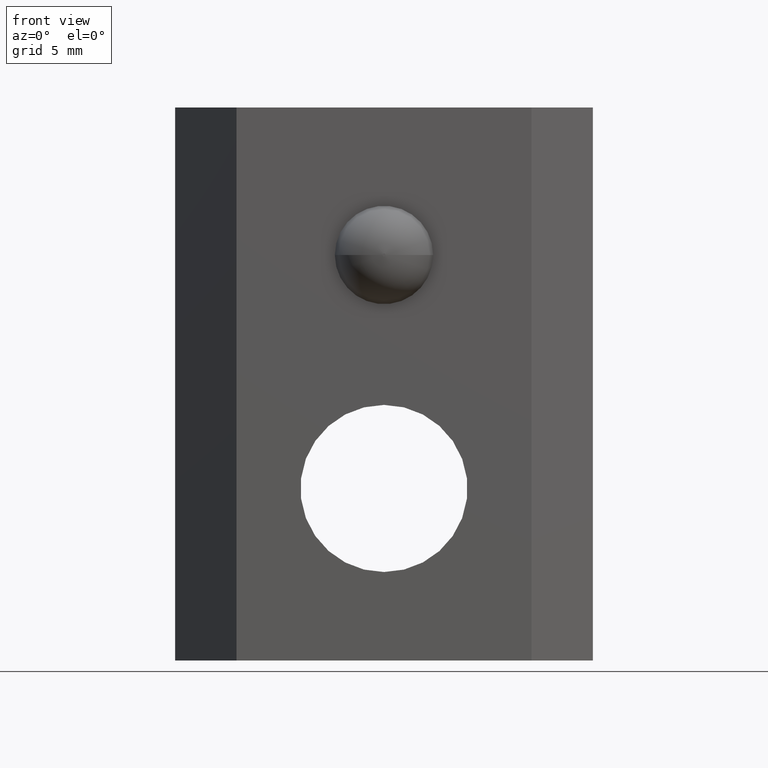
[diagram: clean part render]
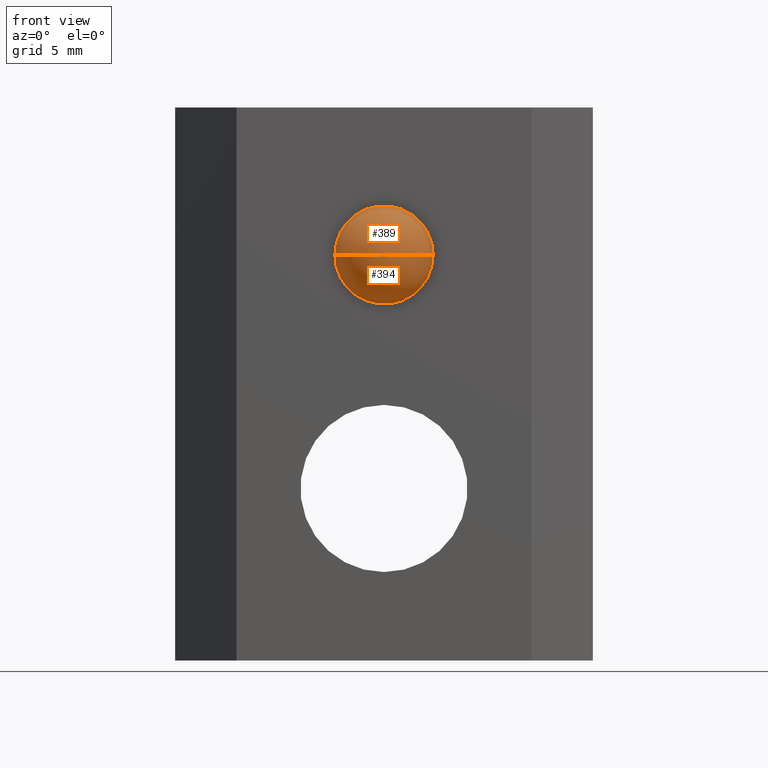
[diagram: same view with one multi-face feature highlighted, each face labeled with its STEP entity id]
A machine part, front view. The highlighted faces form ONE feature: a constant-radius fillet chain: 2 tangent blend faces with common blend radius 2 mm. The faces share edges in the B-rep.
Their STEP definitions:
[1] entity #389 (Torus):
#5 = DIRECTION ( 'NONE',  ( 1.000000000000000000, 0.0000000000000000000, 0.0000000000000000000 ) ) ;
#26 = CARTESIAN_POINT ( 'NONE',  ( 0.06350832689629230800, 0.5000000000000000000, 16.50000000000000000 ) ) ;
#29 = CARTESIAN_POINT ( 'NONE',  ( 5.845100670608983900E-017, 0.5000000000000000000, 16.50000000000000000 ) ) ;
#31 = DIRECTION ( 'NONE',  ( -1.000000000000000000, 1.169020134121797000E-016, 0.0000000000000000000 ) ) ;
#38 = DIRECTION ( 'NONE',  ( 1.169020134121797000E-016, 1.000000000000000000, -0.0000000000000000000 ) ) ;
#50 = DIRECTION ( 'NONE',  ( -1.000000000000000000, 1.169020134121796800E-016, 0.0000000000000000000 ) ) ;
#53 = DIRECTION ( 'NONE',  ( -1.224646799147353200E-016, 1.431636765391068300E-032, 1.000000000000000000 ) ) ;
#54 = CARTESIAN_POINT ( 'NONE',  ( -2.648153673532449300E-031, -2.168404344971008900E-015, 16.50000000000000000 ) ) ;
#60 = CARTESIAN_POINT ( 'NONE',  ( -0.06350832689629219700, 0.5000000000000000000, 16.50000000000000000 ) ) ;
#73 = DIRECTION ( 'NONE',  ( -1.169020134121797000E-016, -1.000000000000000000, 0.0000000000000000000 ) ) ;
#84 = DIRECTION ( 'NONE',  ( -0.0000000000000000000, 0.0000000000000000000, -1.000000000000000000 ) ) ;
#89 = DIRECTION ( 'NONE',  ( 1.000000000000000000, 0.0000000000000000000, 0.0000000000000000000 ) ) ;
#93 = DIRECTION ( 'NONE',  ( -1.000000000000000000, 0.0000000000000000000, 0.0000000000000000000 ) ) ;
#97 = CARTESIAN_POINT ( 'NONE',  ( -1.753530201182695600E-016, -1.500000000000000000, 16.50000000000000000 ) ) ;
#135 = DIRECTION ( 'NONE',  ( -1.169020134121797000E-016, -1.000000000000000000, 0.0000000000000000000 ) ) ;
#138 = CIRCLE ( 'NONE', #301, 2.000000000000000000 ) ;
#142 = CIRCLE ( 'NONE', #283, 2.000000000000000400 ) ;
#148 = CIRCLE ( 'NONE', #286, 0.06350832689629225300 ) ;
#161 = CIRCLE ( 'NONE', #287, 2.000000000000000000 ) ;
#258 = AXIS2_PLACEMENT_3D ( 'NONE', #29, #38, #31 ) ;
#275 = EDGE_CURVE ( 'NONE', #509, #489, #138, .T. ) ;
#279 = EDGE_CURVE ( 'NONE', #489, #501, #142, .T. ) ;
#283 = AXIS2_PLACEMENT_3D ( 'NONE', #54, #73, #50 ) ;
#286 = AXIS2_PLACEMENT_3D ( 'NONE', #97, #135, #89 ) ;
#287 = AXIS2_PLACEMENT_3D ( 'NONE', #60, #84, #93 ) ;
#293 = EDGE_CURVE ( 'NONE', #509, #512, #148, .T. ) ;
#301 = AXIS2_PLACEMENT_3D ( 'NONE', #26, #53, #5 ) ;
#307 = EDGE_CURVE ( 'NONE', #512, #501, #161, .T. ) ;
#339 = ORIENTED_EDGE ( 'NONE', *, *, #293, .F. ) ;
#341 = ORIENTED_EDGE ( 'NONE', *, *, #275, .T. ) ;
#346 = ORIENTED_EDGE ( 'NONE', *, *, #279, .T. ) ;
#352 = ORIENTED_EDGE ( 'NONE', *, *, #307, .F. ) ;
#373 = EDGE_LOOP ( 'NONE', ( #339, #341, #346, #352 ) ) ;
#389 = ADVANCED_FACE ( 'NONE', ( #529 ), #531, .T. ) ;
#433 = CARTESIAN_POINT ( 'NONE',  ( 2.000000000000000400, -2.447936684256014100E-015, 16.50000000000000000 ) ) ;
#446 = CARTESIAN_POINT ( 'NONE',  ( -2.000000000000000000, -1.943082114310278800E-015, 16.50000000000000000 ) ) ;
#453 = CARTESIAN_POINT ( 'NONE',  ( -0.06350832689629243300, -1.500000000000000000, 16.50000000000000000 ) ) ;
#465 = CARTESIAN_POINT ( 'NONE',  ( 0.06350832689629207200, -1.500000000000000000, 16.50000000000000000 ) ) ;
#489 = VERTEX_POINT ( 'NONE', #433 ) ;
#501 = VERTEX_POINT ( 'NONE', #446 ) ;
#509 = VERTEX_POINT ( 'NONE', #465 ) ;
#512 = VERTEX_POINT ( 'NONE', #453 ) ;
#529 = FACE_OUTER_BOUND ( 'NONE', #373, .T. ) ;
#531 = TOROIDAL_SURFACE ( 'NONE', #258, 0.06350832689629225300, 2.000000000000000000 ) ;
[2] entity #394 (Torus):
#3 = DIRECTION ( 'NONE',  ( -1.169020134121797000E-016, -1.000000000000000000, 0.0000000000000000000 ) ) ;
#5 = DIRECTION ( 'NONE',  ( 1.000000000000000000, 0.0000000000000000000, 0.0000000000000000000 ) ) ;
#10 = DIRECTION ( 'NONE',  ( -1.169020134121797000E-016, -1.000000000000000000, 0.0000000000000000000 ) ) ;
#26 = CARTESIAN_POINT ( 'NONE',  ( 0.06350832689629230800, 0.5000000000000000000, 16.50000000000000000 ) ) ;
#33 = DIRECTION ( 'NONE',  ( 1.169020134121797000E-016, 1.000000000000000000, -0.0000000000000000000 ) ) ;
#40 = CARTESIAN_POINT ( 'NONE',  ( 5.845100670608983900E-017, 0.5000000000000000000, 16.50000000000000000 ) ) ;
#51 = DIRECTION ( 'NONE',  ( 1.000000000000000000, 0.0000000000000000000, 0.0000000000000000000 ) ) ;
#53 = DIRECTION ( 'NONE',  ( -1.224646799147353200E-016, 1.431636765391068300E-032, 1.000000000000000000 ) ) ;
#58 = CARTESIAN_POINT ( 'NONE',  ( -1.753530201182695600E-016, -1.500000000000000000, 16.50000000000000000 ) ) ;
#60 = CARTESIAN_POINT ( 'NONE',  ( -0.06350832689629219700, 0.5000000000000000000, 16.50000000000000000 ) ) ;
#62 = DIRECTION ( 'NONE',  ( -1.000000000000000000, 1.169020134121797000E-016, 0.0000000000000000000 ) ) ;
#76 = CARTESIAN_POINT ( 'NONE',  ( -2.648153673532449300E-031, -2.168404344971008900E-015, 16.50000000000000000 ) ) ;
#84 = DIRECTION ( 'NONE',  ( -0.0000000000000000000, 0.0000000000000000000, -1.000000000000000000 ) ) ;
#93 = DIRECTION ( 'NONE',  ( -1.000000000000000000, 0.0000000000000000000, 0.0000000000000000000 ) ) ;
#117 = DIRECTION ( 'NONE',  ( -1.000000000000000000, 1.169020134121796800E-016, 0.0000000000000000000 ) ) ;
#138 = CIRCLE ( 'NONE', #301, 2.000000000000000000 ) ;
#161 = CIRCLE ( 'NONE', #287, 2.000000000000000000 ) ;
#230 = ORIENTED_EDGE ( 'NONE', *, *, #275, .F. ) ;
#231 = ORIENTED_EDGE ( 'NONE', *, *, #315, .F. ) ;
#232 = ORIENTED_EDGE ( 'NONE', *, *, #307, .T. ) ;
#234 = AXIS2_PLACEMENT_3D ( 'NONE', #40, #33, #62 ) ;
#268 = EDGE_CURVE ( 'NONE', #501, #489, #421, .T. ) ;
#275 = EDGE_CURVE ( 'NONE', #509, #489, #138, .T. ) ;
#282 = AXIS2_PLACEMENT_3D ( 'NONE', #76, #10, #117 ) ;
#287 = AXIS2_PLACEMENT_3D ( 'NONE', #60, #84, #93 ) ;
#288 = AXIS2_PLACEMENT_3D ( 'NONE', #58, #3, #51 ) ;
#301 = AXIS2_PLACEMENT_3D ( 'NONE', #26, #53, #5 ) ;
#307 = EDGE_CURVE ( 'NONE', #512, #501, #161, .T. ) ;
#315 = EDGE_CURVE ( 'NONE', #512, #509, #523, .T. ) ;
#334 = ORIENTED_EDGE ( 'NONE', *, *, #268, .T. ) ;
#358 = EDGE_LOOP ( 'NONE', ( #230, #231, #232, #334 ) ) ;
#394 = ADVANCED_FACE ( 'NONE', ( #538 ), #539, .T. ) ;
#421 = CIRCLE ( 'NONE', #282, 2.000000000000000400 ) ;
#433 = CARTESIAN_POINT ( 'NONE',  ( 2.000000000000000400, -2.447936684256014100E-015, 16.50000000000000000 ) ) ;
#446 = CARTESIAN_POINT ( 'NONE',  ( -2.000000000000000000, -1.943082114310278800E-015, 16.50000000000000000 ) ) ;
#453 = CARTESIAN_POINT ( 'NONE',  ( -0.06350832689629243300, -1.500000000000000000, 16.50000000000000000 ) ) ;
#465 = CARTESIAN_POINT ( 'NONE',  ( 0.06350832689629207200, -1.500000000000000000, 16.50000000000000000 ) ) ;
#489 = VERTEX_POINT ( 'NONE', #433 ) ;
#501 = VERTEX_POINT ( 'NONE', #446 ) ;
#509 = VERTEX_POINT ( 'NONE', #465 ) ;
#512 = VERTEX_POINT ( 'NONE', #453 ) ;
#523 = CIRCLE ( 'NONE', #288, 0.06350832689629225300 ) ;
#538 = FACE_OUTER_BOUND ( 'NONE', #358, .T. ) ;
#539 = TOROIDAL_SURFACE ( 'NONE', #234, 0.06350832689629225300, 2.000000000000000000 ) ;